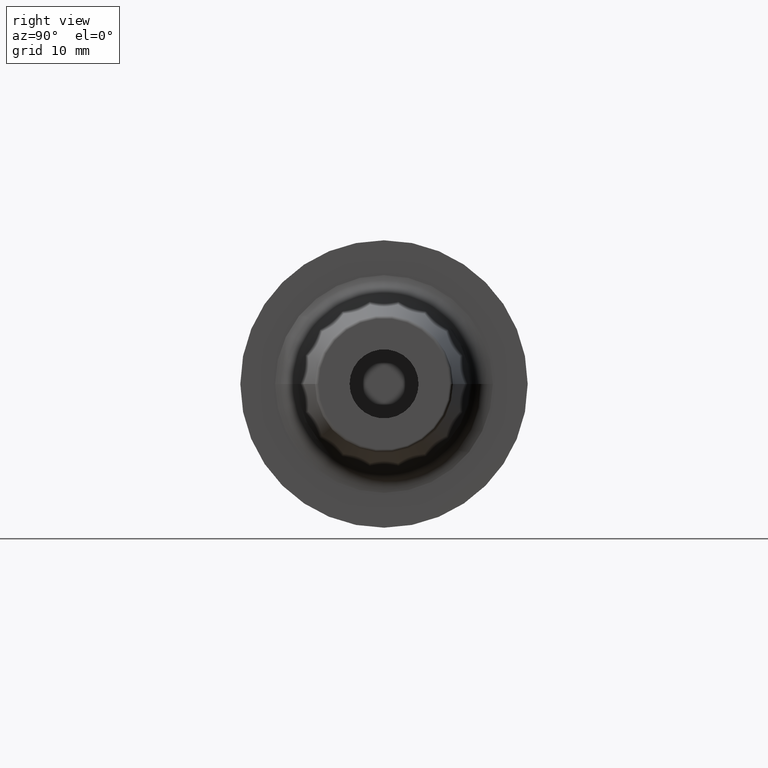
[diagram: clean part render]
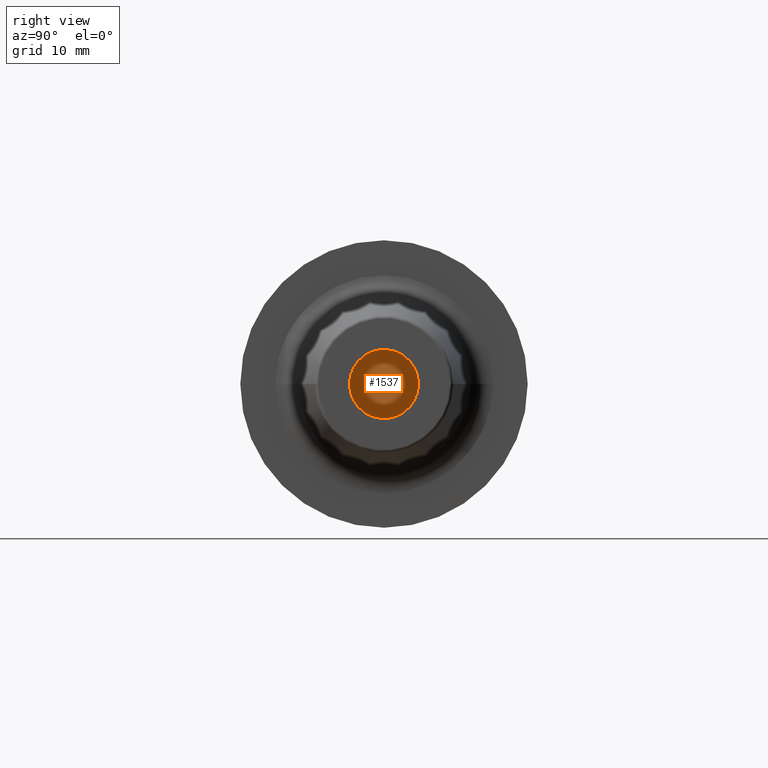
[diagram: same view with one face highlighted and labeled with its STEP entity id]
A machine part, right view. The second image highlights one B-rep face of the part: STEP entity #1537.
In plain terms, the highlighted planar face has unit normal (1, 0, 0).
Its self-contained STEP definition (entity closure, byte-faithful):
#550=CARTESIAN_POINT('',(1.25E1,0.E0,0.E0));
#551=DIRECTION('',(-1.E0,0.E0,0.E0));
#552=DIRECTION('',(0.E0,1.E0,0.E0));
#553=AXIS2_PLACEMENT_3D('',#550,#551,#552);
#555=CARTESIAN_POINT('',(1.25E1,0.E0,0.E0));
#556=DIRECTION('',(1.E0,0.E0,0.E0));
#557=DIRECTION('',(0.E0,1.E0,0.E0));
#558=AXIS2_PLACEMENT_3D('',#555,#556,#557);
#684=CARTESIAN_POINT('',(1.25E1,3.E0,0.E0));
#685=CARTESIAN_POINT('',(1.25E1,-3.E0,0.E0));
#686=VERTEX_POINT('',#684);
#687=VERTEX_POINT('',#685);
#1528=CARTESIAN_POINT('',(1.25E1,0.E0,0.E0));
#1529=DIRECTION('',(1.E0,0.E0,0.E0));
#1530=DIRECTION('',(0.E0,-1.E0,0.E0));
#1531=AXIS2_PLACEMENT_3D('',#1528,#1529,#1530);
#1532=PLANE('',#1531);
#1533=ORIENTED_EDGE('',*,*,#1522,.T.);
#1534=ORIENTED_EDGE('',*,*,#1508,.F.);
#1535=EDGE_LOOP('',(#1533,#1534));
#1536=FACE_OUTER_BOUND('',#1535,.F.);
#1537=ADVANCED_FACE('',(#1536),#1532,.T.);
#554=CIRCLE('',#553,3.E0);
#559=CIRCLE('',#558,3.E0);
#1508=EDGE_CURVE('',#686,#687,#559,.T.);
#1522=EDGE_CURVE('',#686,#687,#554,.T.);